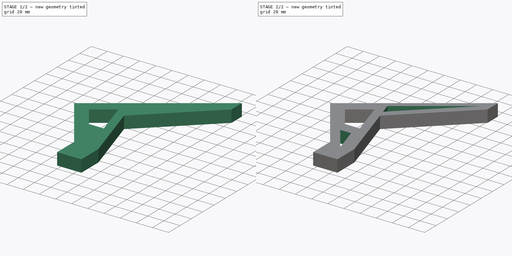
[diagram: build sequence overview — one tinted view per stage of 2, left to right]
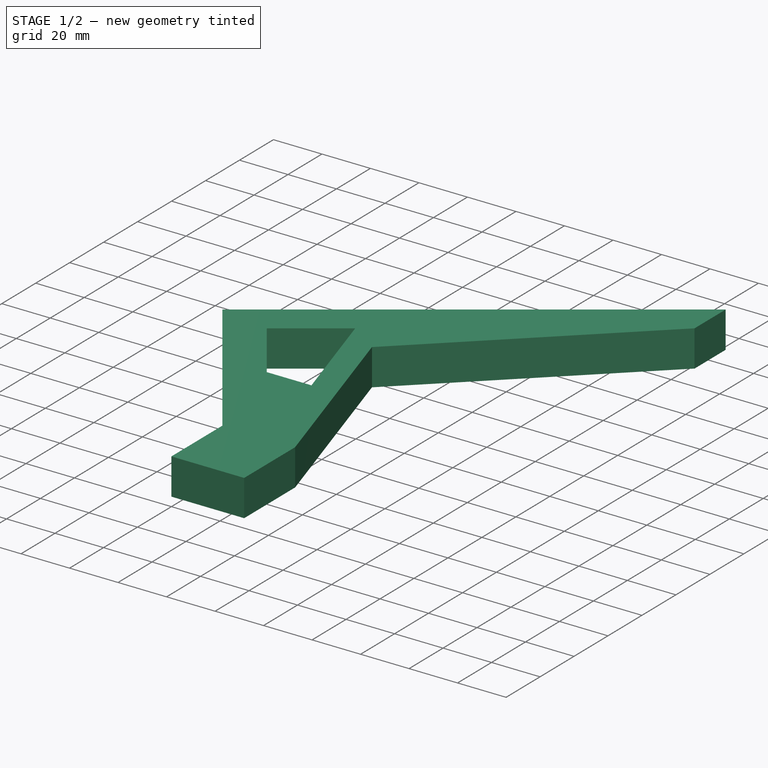
[diagram: stage 1 of 2 — iso view after this stage's code; geometry added in this stage tinted green]
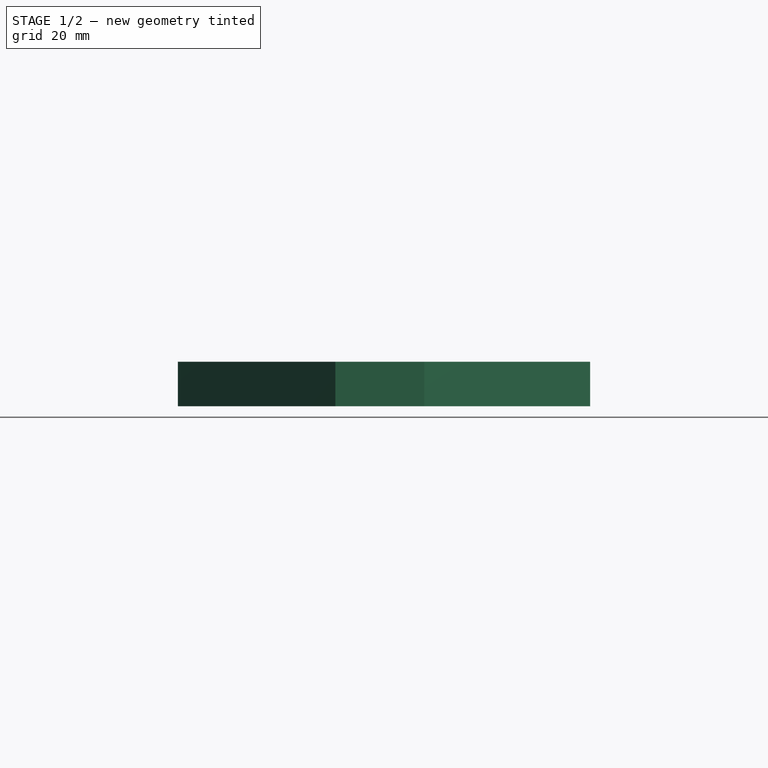
[diagram: stage 1 of 2 — front view after this stage's code; geometry added in this stage tinted green]
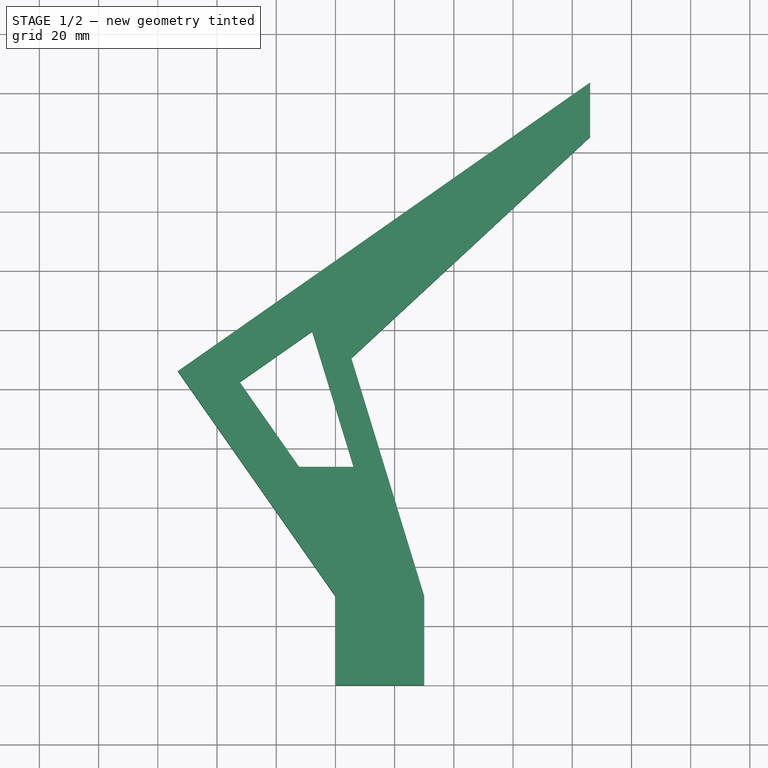
[diagram: stage 1 of 2 — top view after this stage's code; geometry added in this stage tinted green]
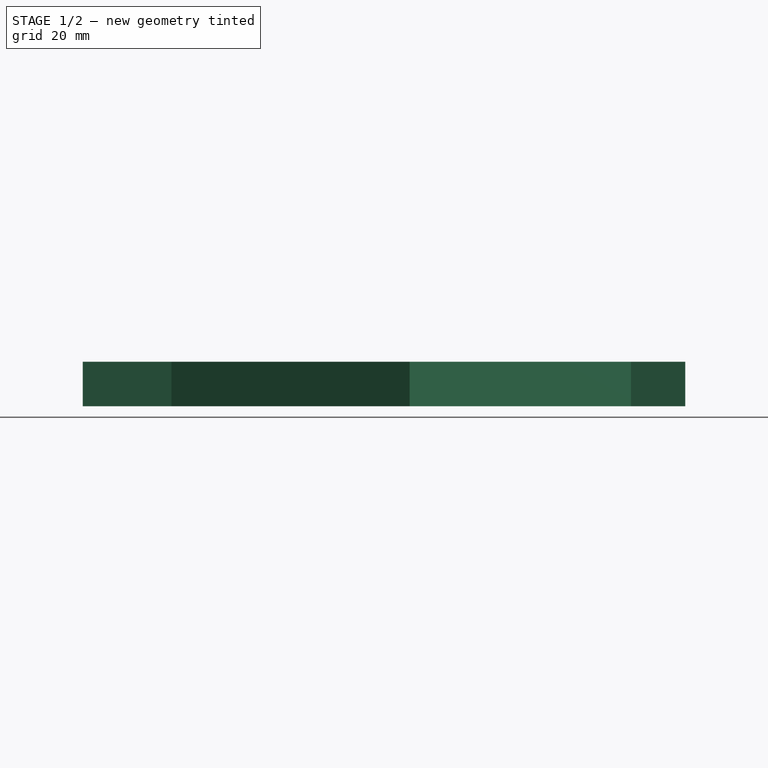
[diagram: stage 1 of 2 — right view after this stage's code; geometry added in this stage tinted green]
FCSTD DOCUMENT  (FreeCAD 0.19R24267 +99 (Git))
Label: Shoe_stand
License: All rights reserved
LicenseURL: http://en.wikipedia.org/wiki/All_rights_reserved
objects: Sketcher::SketchObject×4, PartDesign::Pocket×3, PartDesign::Pad×1, PartDesign::Body×1
note: 13 computed .brp shape members not serialized (recipe doc carries the construction recipe); baked Part::Feature solids carry a one-line shape summary decoded from their .brp

FEATURE [Sketcher::SketchObject] Sketch
  FullyConstrained = true
  MapMode = 5
  Support = -> [XY_Plane]
  sketch-geometry (8):
    g0: LineSegment StartX=86.0321 StartY=203.519 StartZ=0 EndX=86.0321 EndY=185.208 EndZ=0
    g1: LineSegment StartX=86.0321 StartY=185.208 StartZ=0 EndX=5.37076 EndY=110.416 EndZ=0
    g2: LineSegment StartX=5.37076 StartY=110.416 StartZ=0 EndX=30 EndY=30 EndZ=0
    g3: LineSegment StartX=0 StartY=30 StartZ=0 EndX=-53.2237 EndY=106.011 EndZ=0
    g4: LineSegment StartX=-53.2237 StartY=106.011 StartZ=0 EndX=86.0321 EndY=203.519 EndZ=0
    g5: LineSegment StartX=0 StartY=30 StartZ=0 EndX=0 EndY=0 EndZ=0
    g6: LineSegment StartX=0 StartY=0 StartZ=0 EndX=30 EndY=0 EndZ=0
    g7: LineSegment StartX=30 StartY=0 StartZ=0 EndX=30 EndY=30 EndZ=0
  constraints (23):
    c: Coincident(g0,g1)
    c: Coincident(g1,g2)
    c: Coincident(g3,g4)
    c: Coincident(g4,g0)
    c: Distance(g4) = 170
    c: Distance(g7,g4) = 110
    c: Perpendicular(g4,g3)
    c: Angle(g-2,g3) = 0.610865
    c: Distance(g1,g4) = 30
    c: Horizontal(g3,g7)
    c: Coincident(g3,g5)
    c: Vertical(g5)
    c: Coincident(g5,g6)
    c: Horizontal(g6)
    c: Coincident(g6,g7)
    c: Vertical(g7)
    c: Distance(g6) = 30
    c: Vertical(g0)
    c: Distance(g0,g4) = 15
    c: Distance(g1) = 110
    c: Coincident(g2,g7)
    c: Distance(g7) = 30
    c: Coincident(g5,g-1)
FEATURE [PartDesign::Pad] Pad
  Direction = (1,1,1)
  Length = 15
  Length2 = 100
  Profile = -> Sketch
  Type = 0
FEATURE [Sketcher::SketchObject] Sketch001
  ExternalGeometry = -> [Pad]
  FullyConstrained = true
  MapMode = 5
  Placement = pos=(0,0,15) rot=(0,0,1;0rad)
  Support = -> [Pad]
  sketch-geometry (4):
    g0: LineSegment StartX=-32.3328 StartY=102.328 StartZ=0 EndX=-12.2576 EndY=73.6574 EndZ=0
    g1: LineSegment StartX=-12.2576 StartY=73.6574 StartZ=0 EndX=6.17049 EndY=73.6574 EndZ=0
    g2: LineSegment StartX=6.17049 StartY=73.6574 StartZ=0 EndX=-7.85892 EndY=119.464 EndZ=0
    g3: LineSegment StartX=-7.85892 StartY=119.464 StartZ=0 EndX=-32.3328 EndY=102.328 EndZ=0
  constraints (12):
    c: Coincident(g0,g1)
    c: Horizontal(g1)
    c: Coincident(g1,g2)
    c: Coincident(g2,g3)
    c: Coincident(g3,g0)
    c: Parallel(g0,g-3)
    c: Parallel(g2,g-4)
    c: Parallel(g3,g-5)
    c: Distance(g1,g-4) = 10
    c: Distance(g0,g-3) = 15
    c: Distance(g0,g-5) = 15
    c: Distance(g0) = 35
FEATURE [PartDesign::Pocket] Pocket
  BaseFeature = -> Pad
  Length = 5
  Length2 = 100
  Profile = -> Sketch001
  Type = 1
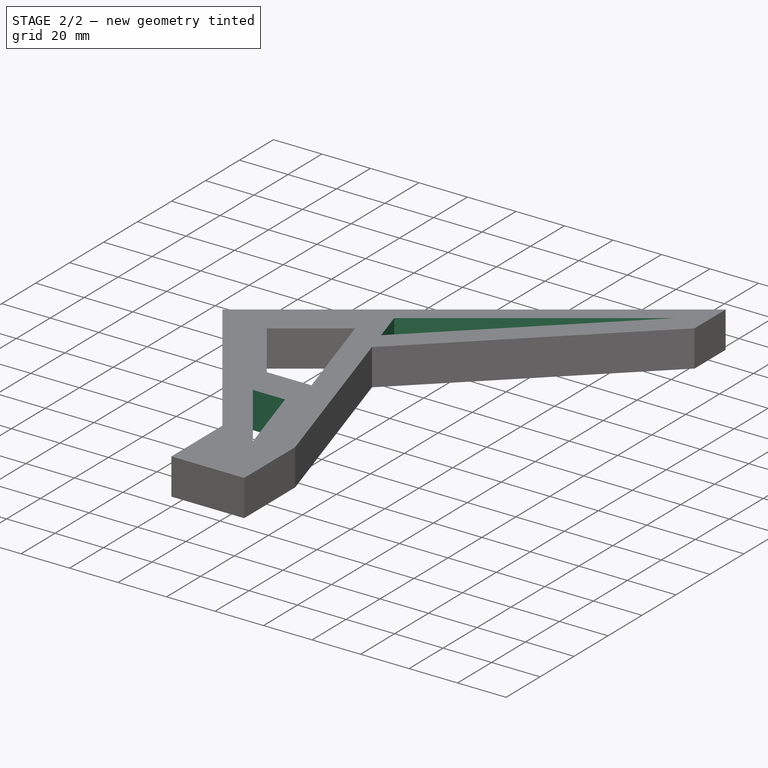
[diagram: stage 2 of 2 — iso view after this stage's code; geometry added in this stage tinted green]
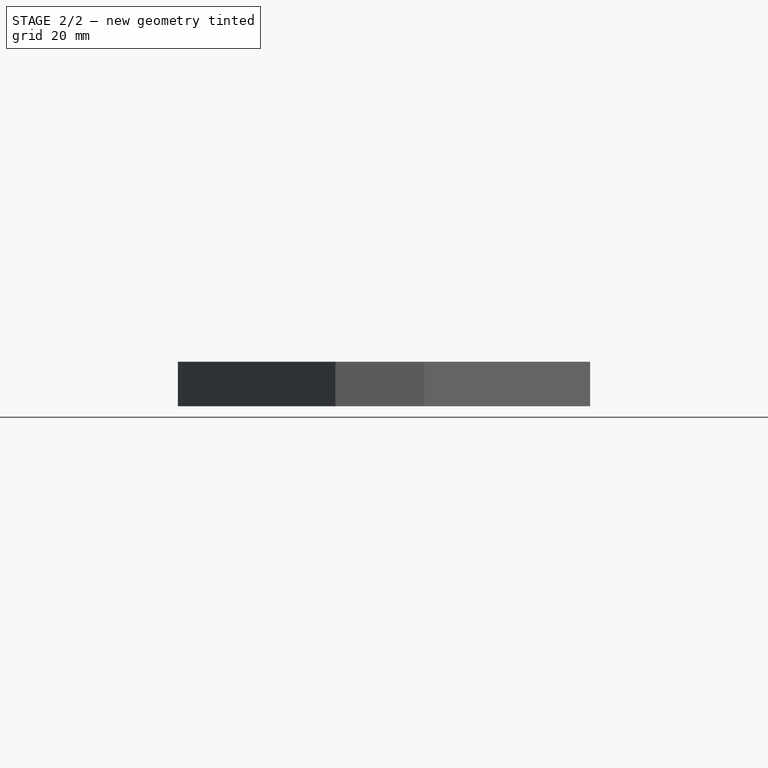
[diagram: stage 2 of 2 — front view after this stage's code; geometry added in this stage tinted green]
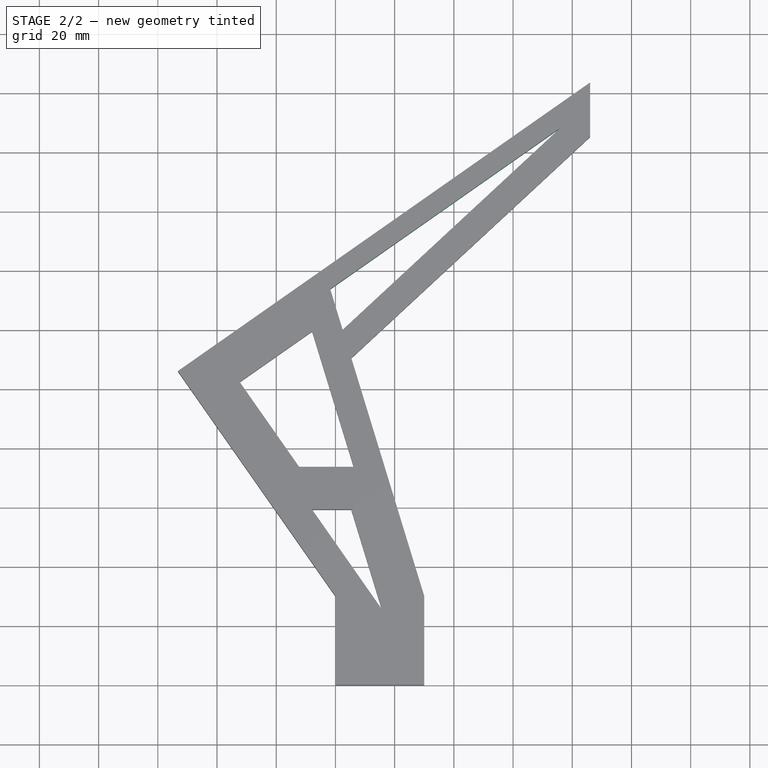
[diagram: stage 2 of 2 — top view after this stage's code; geometry added in this stage tinted green]
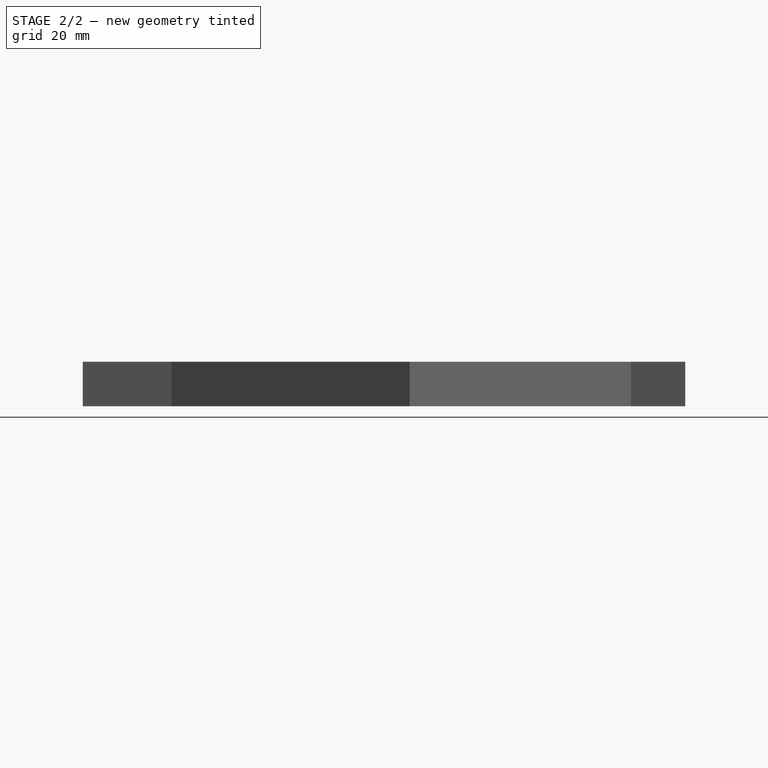
[diagram: stage 2 of 2 — right view after this stage's code; geometry added in this stage tinted green]
FEATURE [Sketcher::SketchObject] Sketch002
  ExternalGeometry = -> [Pocket]
  FullyConstrained = true
  MapMode = 5
  Placement = pos=(0,0,15) rot=(0,0,1;0rad)
  Support = -> [Pocket]
  sketch-geometry (3):
    g0: LineSegment StartX=-1.77081 StartY=133.734 StartZ=0 EndX=76.0321 EndY=188.212 EndZ=0
    g1: LineSegment StartX=76.0321 StartY=188.212 StartZ=0 EndX=2.44231 EndY=119.978 EndZ=0
    g2: LineSegment StartX=2.44231 StartY=119.978 StartZ=0 EndX=-1.77081 EndY=133.734 EndZ=0
  constraints (9):
    c: Coincident(g1,g2)
    c: Coincident(g2,g0)
    c: Parallel(g0,g-5)
    c: Parallel(g1,g-4)
    c: Parallel(g2,g-3)
    c: Coincident(g0,g1)
    c: Distance(g-3,g2) = 10
    c: Distance(g0,g-6) = 10
    c: Distance(g1,g-4) = 10
FEATURE [PartDesign::Pocket] Pocket001
  BaseFeature = -> Pocket
  Length = 5
  Length2 = 100
  Profile = -> Sketch002
  Type = 1
FEATURE [Sketcher::SketchObject] Sketch003
  ExternalGeometry = -> [Pocket001]
  FullyConstrained = true
  MapMode = 5
  Placement = pos=(0,0,15) rot=(0,0,1;0rad)
  Support = -> [Pocket001]
  sketch-geometry (3):
    g0: LineSegment StartX=-7.93074 StartY=59.295 StartZ=0 EndX=5.34003 EndY=59.295 EndZ=0
    g1: LineSegment StartX=5.34003 StartY=59.295 StartZ=0 EndX=15.6576 EndY=25.6074 EndZ=0
    g2: LineSegment StartX=15.6576 StartY=25.6074 StartZ=0 EndX=-7.93074 EndY=59.295 EndZ=0
  constraints (9):
    c: Coincident(g0,g1)
    c: Coincident(g1,g2)
    c: Coincident(g2,g0)
    c: Parallel(g-5,g0)
    c: Parallel(g1,g-4)
    c: Parallel(g2,g-3)
    c: Distance(g0,g-5) = 15
    c: Distance(g1,g-4) = 15
    c: Distance(g0,g-4) = 15
FEATURE [PartDesign::Pocket] Pocket002
  BaseFeature = -> Pocket001
  Length = 5
  Length2 = 100
  Profile = -> Sketch003
  Type = 1
FEATURE [PartDesign::Body] Body
  Group = -> [Sketch,Pad,Sketch001,Pocket,Sketch002,Pocket001,Sketch003,Pocket002]
  Origin = -> Origin
  Tip = -> Pocket002
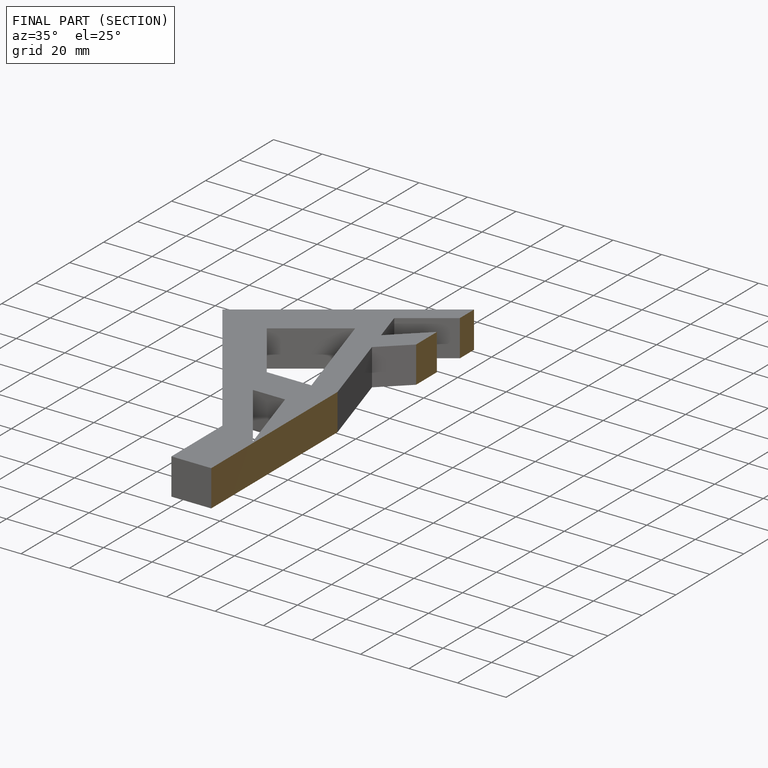
[diagram: finished part — half-section view (interior)]
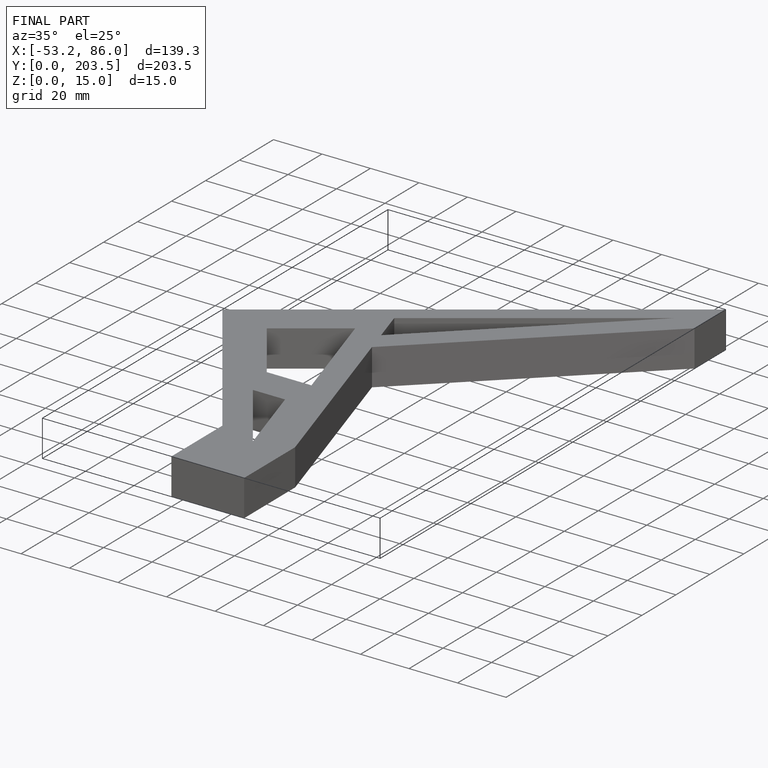
[diagram: finished part — iso view with bounding-box wireframe]
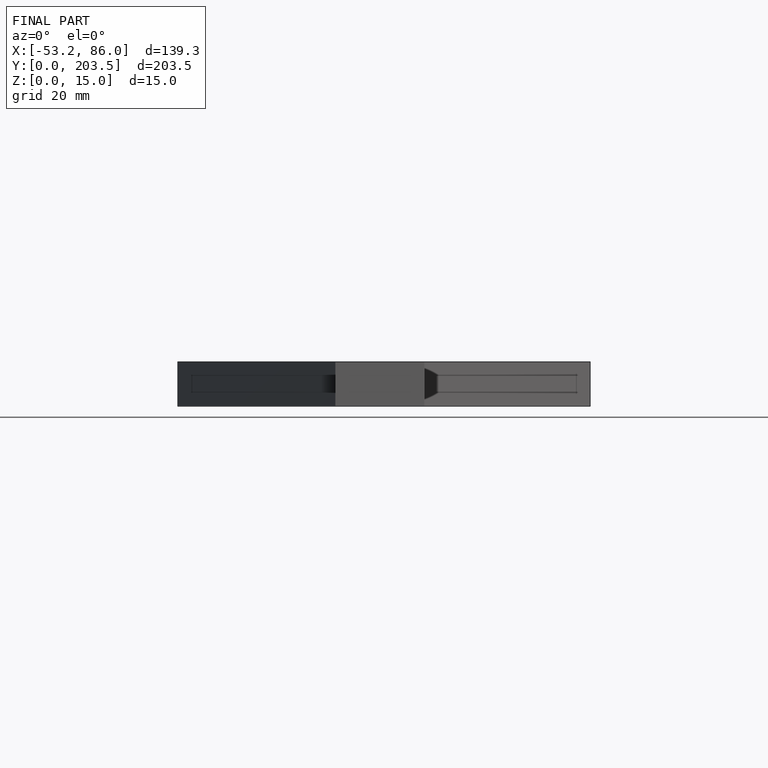
[diagram: finished part — front view with bounding-box wireframe]
